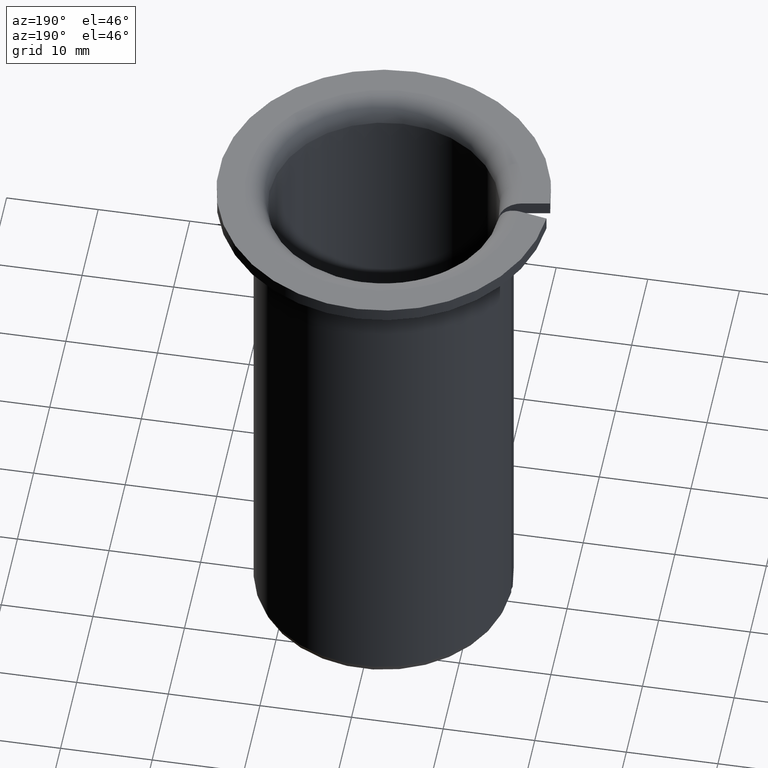
[diagram: clean part render]
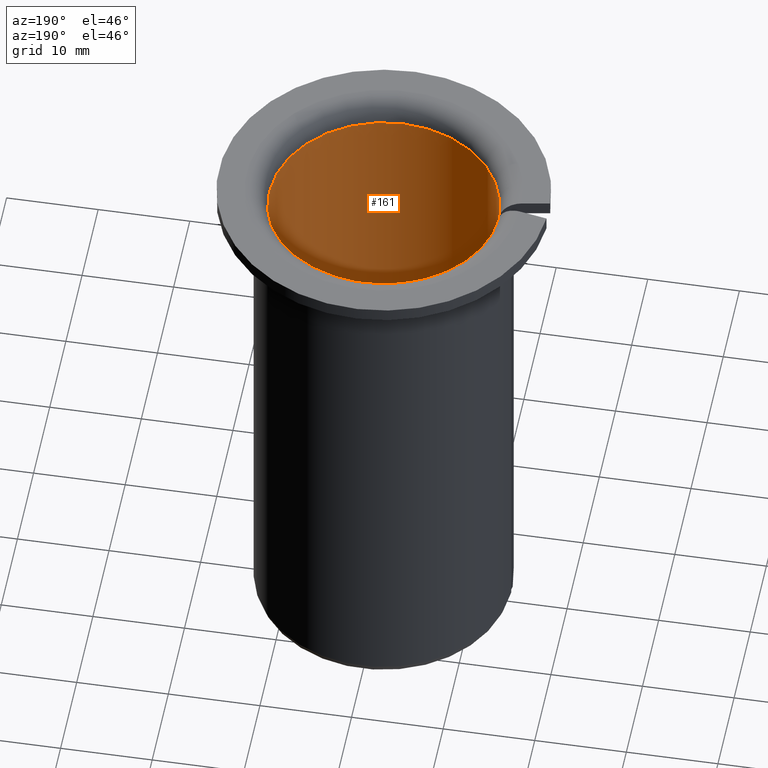
[diagram: same view with one face highlighted and labeled with its STEP entity id]
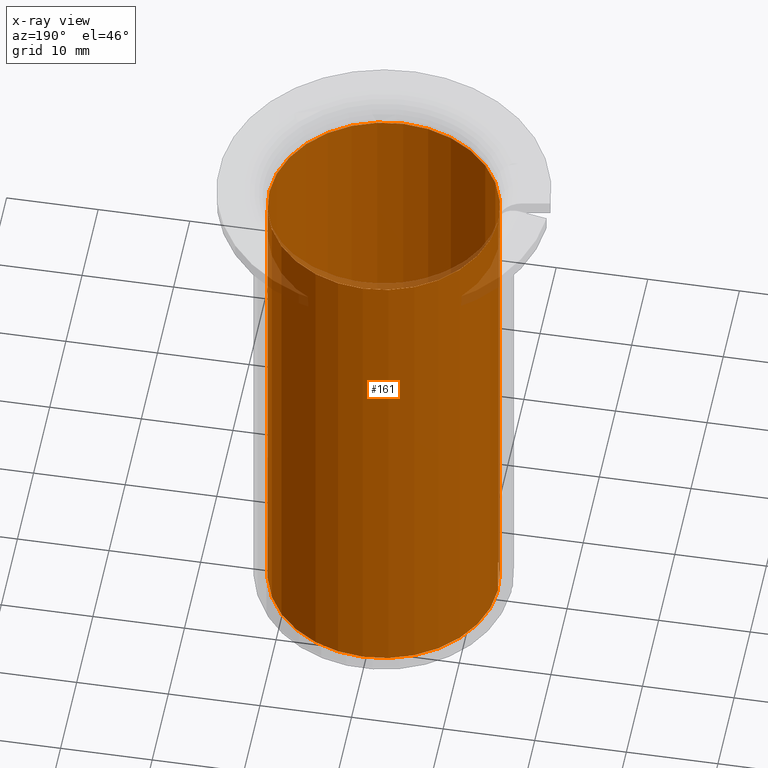
[diagram: x-ray of the same camera — body ghosted, the highlighted face saturated]
A machine part, auxiliary view. The second image highlights one B-rep face of the part: STEP entity #161.
The next image is the same camera in x-ray: the body ghosted, the highlighted face saturated — about 3% of this face is hidden behind the body in this view.
In plain terms, the highlighted cylindrical surface (partial cylindrical patch) has radius 12.5 mm, axis along (-0, 0, -1).
Its self-contained STEP definition (entity closure, byte-faithful):
#161=ADVANCED_FACE('',(#183),#184,.F.);
#183=FACE_OUTER_BOUND('',#208,.T.);
#184=CYLINDRICAL_SURFACE('',#209,0.0125);
#208=EDGE_LOOP('',(#278,#279,#280,#281));
#209=AXIS2_PLACEMENT_3D('',#282,#283,#284);
#278=ORIENTED_EDGE('',*,*,#324,.T.);
#279=ORIENTED_EDGE('',*,*,#338,.T.);
#280=ORIENTED_EDGE('',*,*,#325,.F.);
#281=ORIENTED_EDGE('',*,*,#321,.F.);
#282=CARTESIAN_POINT('',(0.0,0.0,0.0));
#283=DIRECTION('',(0.0,-6.12323399573677E-017,-1.0));
#284=DIRECTION('',(0.0,1.0,-6.12323399573677E-017));
#321=EDGE_CURVE('',#359,#342,#361,.F.);
#324=EDGE_CURVE('',#359,#364,#366,.T.);
#325=EDGE_CURVE('',#342,#367,#368,.T.);
#338=EDGE_CURVE('',#364,#367,#387,.F.);
#342=VERTEX_POINT('',#392);
#359=VERTEX_POINT('',#439);
#361=LINE('',#444,#445);
#364=VERTEX_POINT('',#448);
#366=CIRCLE('',#453,0.0125);
#367=VERTEX_POINT('',#454);
#368=CIRCLE('',#455,0.0125);
#387=LINE('',#500,#501);
#392=CARTESIAN_POINT('',(0.0124987593741588,-0.000176108224899695,0.0575));
#439=CARTESIAN_POINT('',(0.0124987593741588,-0.000176108224899699,0.0005));
#444=CARTESIAN_POINT('',(0.0124987593741588,-0.000176108224899698,1.57319054334512E-020));
#445=VECTOR('',#515,1.0);
#448=CARTESIAN_POINT('',(0.0124987593741588,0.0001761082248997,0.0005));
#453=AXIS2_PLACEMENT_3D('',#519,#520,#521);
#454=CARTESIAN_POINT('',(0.0124987593741588,0.000176108224899704,0.0575));
#455=AXIS2_PLACEMENT_3D('',#522,#523,#524);
#500=CARTESIAN_POINT('',(0.0124987593741588,0.0001761082248997,-2.31061813319295E-020));
#501=VECTOR('',#547,1.0);
#515=DIRECTION('',(0.0,-6.12323399573677E-017,-1.0));
#519=CARTESIAN_POINT('',(0.0,0.0,0.0005));
#520=DIRECTION('',(0.0,-6.12323399573677E-017,-1.0));
#521=DIRECTION('',(0.0,1.0,-6.12323399573677E-017));
#522=CARTESIAN_POINT('',(0.0,3.46944695195362E-018,0.0575));
#523=DIRECTION('',(0.0,-6.12323399573677E-017,-1.0));
#524=DIRECTION('',(0.0,1.0,-6.12323399573677E-017));
#547=DIRECTION('',(0.0,-6.12323399573677E-017,-1.0));